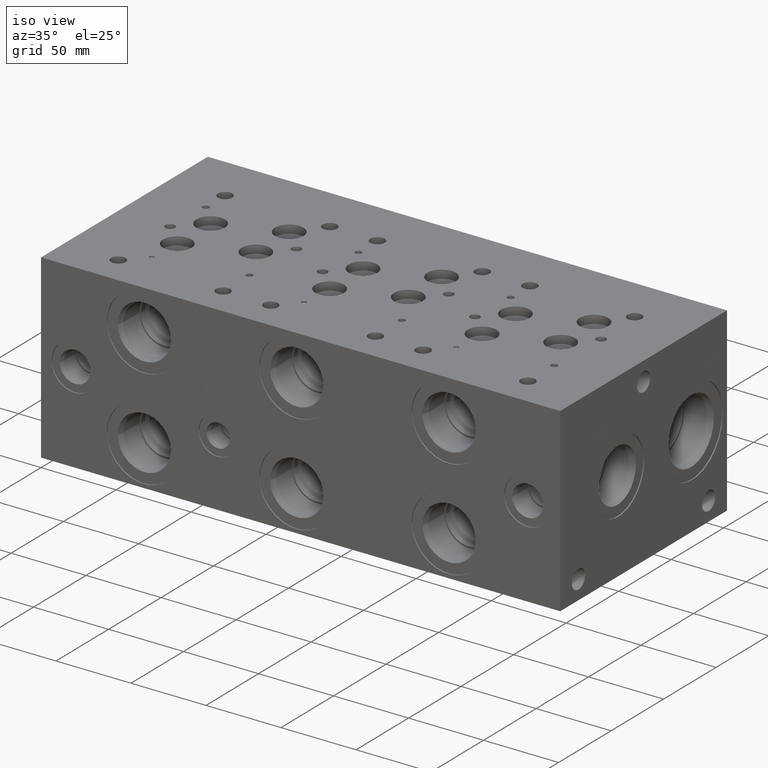
[diagram: clean part render]
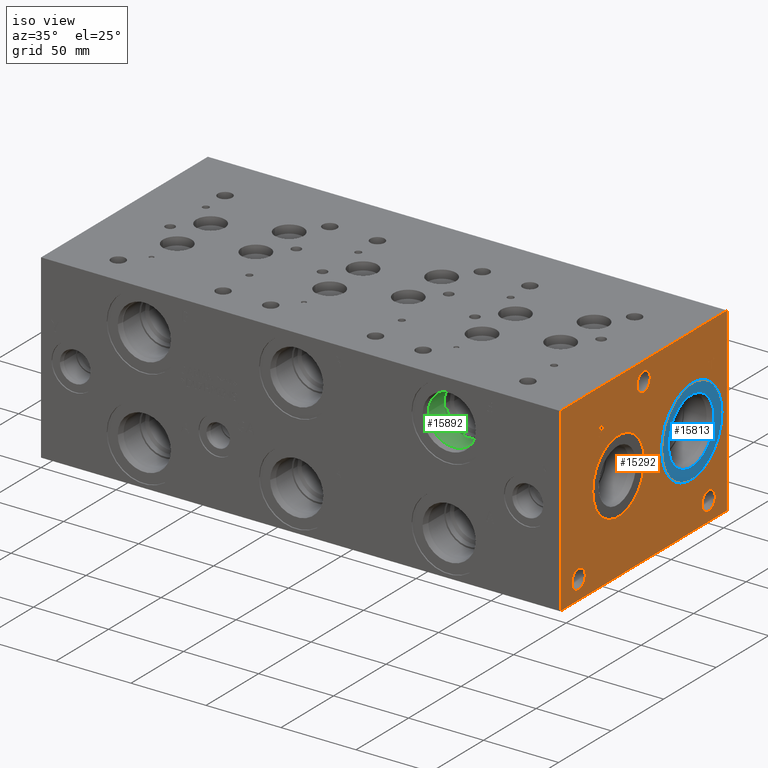
[diagram: same view with three faces highlighted in distinct colors, each labeled with its STEP entity id]
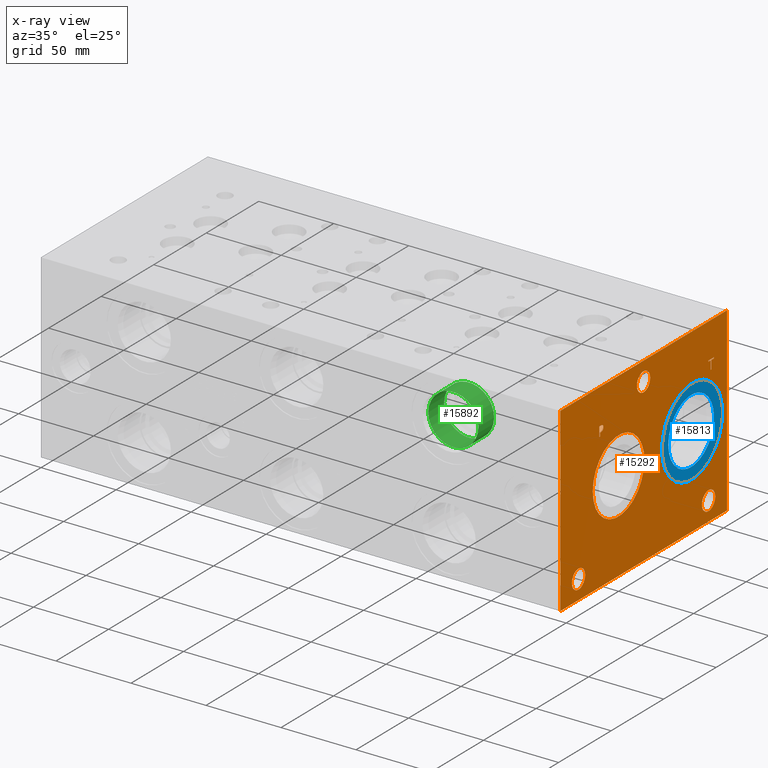
[diagram: x-ray of the same camera — body ghosted, the three highlighted faces saturated]
A machine part, iso view with three faces highlighted in distinct colors.
The next image is the same camera in x-ray (body ghosted, the three faces saturated) — at least one of them is partly hidden behind the body in this view.
Their STEP definitions:

[orange] entity #15292 — the highlighted planar face has unit normal (1, 0, 0).
#263=CIRCLE('',#16143,6.35);
#264=CIRCLE('',#16144,6.35);
#265=CIRCLE('',#16145,6.35);
#266=CIRCLE('',#16146,6.35);
#267=CIRCLE('',#16147,6.35);
#268=CIRCLE('',#16148,6.35);
#269=CIRCLE('',#16149,24.5618);
#270=CIRCLE('',#16150,24.5618);
#271=CIRCLE('',#16151,29.2862);
#272=CIRCLE('',#16152,29.2862);
#775=FACE_BOUND('',#2272,.T.);
#776=FACE_BOUND('',#2273,.T.);
#777=FACE_BOUND('',#2274,.T.);
#778=FACE_BOUND('',#2275,.T.);
#779=FACE_BOUND('',#2276,.T.);
#780=FACE_BOUND('',#2277,.T.);
#781=FACE_BOUND('',#2278,.T.);
#943=B_SPLINE_CURVE_WITH_KNOTS('',2,(#21289,#21290,#21291,#21292),
 .UNSPECIFIED.,.F.,.F.,(3,1,3),(0.,1.,2.),.UNSPECIFIED.);
#945=B_SPLINE_CURVE_WITH_KNOTS('',2,(#21310,#21311,#21312,#21313),
 .UNSPECIFIED.,.F.,.F.,(3,1,3),(0.,1.,2.),.UNSPECIFIED.);
#947=B_SPLINE_CURVE_WITH_KNOTS('',2,(#21359,#21360,#21361,#21362),
 .UNSPECIFIED.,.F.,.F.,(3,1,3),(0.,1.,2.),.UNSPECIFIED.);
#949=B_SPLINE_CURVE_WITH_KNOTS('',2,(#21377,#21378,#21379,#21380),
 .UNSPECIFIED.,.F.,.F.,(3,1,3),(0.,1.,2.),.UNSPECIFIED.);
#1426=FACE_OUTER_BOUND('',#2271,.T.);
#2271=EDGE_LOOP('',(#9966,#9967,#9968,#9969));
#2272=EDGE_LOOP('',(#9970,#9971,#9972,#9973,#9974,#9975,#9976,#9977));
#2273=EDGE_LOOP('',(#9978,#9979));
#2274=EDGE_LOOP('',(#9980,#9981));
#2275=EDGE_LOOP('',(#9982,#9983));
#2276=EDGE_LOOP('',(#9984,#9985));
#2277=EDGE_LOOP('',(#9986,#9987));
#2278=EDGE_LOOP('',(#9988,#9989,#9990,#9991,#9992,#9993,#9994,#9995,#9996));
#3249=LINE('',#21139,#4658);
#3253=LINE('',#21147,#4662);
#3256=LINE('',#21153,#4665);
#3259=LINE('',#21159,#4668);
#3262=LINE('',#21165,#4671);
#3265=LINE('',#21171,#4674);
#3268=LINE('',#21177,#4677);
#3271=LINE('',#21182,#4680);
#3289=LINE('',#21322,#4698);
#3292=LINE('',#21328,#4701);
#3295=LINE('',#21334,#4704);
#3298=LINE('',#21340,#4707);
#3301=LINE('',#21346,#4710);
#3305=LINE('',#21389,#4714);
#3306=LINE('',#21391,#4715);
#3307=LINE('',#21393,#4716);
#3308=LINE('',#21394,#4717);
#4658=VECTOR('',#17328,10.);
#4662=VECTOR('',#17334,10.);
#4665=VECTOR('',#17339,10.);
#4668=VECTOR('',#17344,10.);
#4671=VECTOR('',#17349,10.);
#4674=VECTOR('',#17354,10.);
#4677=VECTOR('',#17359,10.);
#4680=VECTOR('',#17364,10.);
#4698=VECTOR('',#17392,10.);
#4701=VECTOR('',#17397,10.);
#4704=VECTOR('',#17402,10.);
#4707=VECTOR('',#17407,10.);
#4710=VECTOR('',#17412,10.);
#4714=VECTOR('',#17420,10.);
#4715=VECTOR('',#17421,10.);
#4716=VECTOR('',#17422,10.);
#4717=VECTOR('',#17423,10.);
#6067=VERTEX_POINT('',#21137);
#6068=VERTEX_POINT('',#21138);
#6071=VERTEX_POINT('',#21146);
#6073=VERTEX_POINT('',#21152);
#6075=VERTEX_POINT('',#21158);
#6077=VERTEX_POINT('',#21164);
#6079=VERTEX_POINT('',#21170);
#6081=VERTEX_POINT('',#21176);
#6097=VERTEX_POINT('',#21287);
#6098=VERTEX_POINT('',#21288);
#6101=VERTEX_POINT('',#21309);
#6103=VERTEX_POINT('',#21321);
#6105=VERTEX_POINT('',#21327);
#6107=VERTEX_POINT('',#21333);
#6109=VERTEX_POINT('',#21339);
#6111=VERTEX_POINT('',#21345);
#6113=VERTEX_POINT('',#21358);
#6115=VERTEX_POINT('',#21387);
#6116=VERTEX_POINT('',#21388);
#6117=VERTEX_POINT('',#21390);
#6118=VERTEX_POINT('',#21392);
#6119=VERTEX_POINT('',#21395);
#6120=VERTEX_POINT('',#21396);
#6121=VERTEX_POINT('',#21399);
#6122=VERTEX_POINT('',#21400);
#6123=VERTEX_POINT('',#21403);
#6124=VERTEX_POINT('',#21404);
#6125=VERTEX_POINT('',#21407);
#6126=VERTEX_POINT('',#21408);
#6127=VERTEX_POINT('',#21411);
#6128=VERTEX_POINT('',#21412);
#7616=EDGE_CURVE('',#6067,#6068,#3249,.T.);
#7620=EDGE_CURVE('',#6071,#6067,#3253,.T.);
#7623=EDGE_CURVE('',#6073,#6071,#3256,.T.);
#7626=EDGE_CURVE('',#6075,#6073,#3259,.T.);
#7629=EDGE_CURVE('',#6077,#6075,#3262,.T.);
#7632=EDGE_CURVE('',#6079,#6077,#3265,.T.);
#7635=EDGE_CURVE('',#6081,#6079,#3268,.T.);
#7638=EDGE_CURVE('',#6068,#6081,#3271,.T.);
#7661=EDGE_CURVE('',#6097,#6098,#943,.T.);
#7665=EDGE_CURVE('',#6101,#6097,#945,.T.);
#7668=EDGE_CURVE('',#6103,#6101,#3289,.T.);
#7671=EDGE_CURVE('',#6105,#6103,#3292,.T.);
#7674=EDGE_CURVE('',#6107,#6105,#3295,.T.);
#7677=EDGE_CURVE('',#6109,#6107,#3298,.T.);
#7680=EDGE_CURVE('',#6111,#6109,#3301,.T.);
#7683=EDGE_CURVE('',#6113,#6111,#947,.T.);
#7686=EDGE_CURVE('',#6098,#6113,#949,.T.);
#7688=EDGE_CURVE('',#6115,#6116,#3305,.T.);
#7689=EDGE_CURVE('',#6116,#6117,#3306,.T.);
#7690=EDGE_CURVE('',#6118,#6117,#3307,.T.);
#7691=EDGE_CURVE('',#6115,#6118,#3308,.T.);
#7692=EDGE_CURVE('',#6119,#6120,#263,.T.);
#7693=EDGE_CURVE('',#6120,#6119,#264,.T.);
#7694=EDGE_CURVE('',#6121,#6122,#265,.T.);
#7695=EDGE_CURVE('',#6122,#6121,#266,.T.);
#7696=EDGE_CURVE('',#6123,#6124,#267,.T.);
#7697=EDGE_CURVE('',#6124,#6123,#268,.T.);
#7698=EDGE_CURVE('',#6125,#6126,#269,.T.);
#7699=EDGE_CURVE('',#6126,#6125,#270,.T.);
#7700=EDGE_CURVE('',#6127,#6128,#271,.T.);
#7701=EDGE_CURVE('',#6128,#6127,#272,.T.);
#9966=ORIENTED_EDGE('',*,*,#7688,.T.);
#9967=ORIENTED_EDGE('',*,*,#7689,.T.);
#9968=ORIENTED_EDGE('',*,*,#7690,.F.);
#9969=ORIENTED_EDGE('',*,*,#7691,.F.);
#9970=ORIENTED_EDGE('',*,*,#7616,.T.);
#9971=ORIENTED_EDGE('',*,*,#7638,.T.);
#9972=ORIENTED_EDGE('',*,*,#7635,.T.);
#9973=ORIENTED_EDGE('',*,*,#7632,.T.);
#9974=ORIENTED_EDGE('',*,*,#7629,.T.);
#9975=ORIENTED_EDGE('',*,*,#7626,.T.);
#9976=ORIENTED_EDGE('',*,*,#7623,.T.);
#9977=ORIENTED_EDGE('',*,*,#7620,.T.);
#9978=ORIENTED_EDGE('',*,*,#7692,.T.);
#9979=ORIENTED_EDGE('',*,*,#7693,.T.);
#9980=ORIENTED_EDGE('',*,*,#7694,.T.);
#9981=ORIENTED_EDGE('',*,*,#7695,.T.);
#9982=ORIENTED_EDGE('',*,*,#7696,.T.);
#9983=ORIENTED_EDGE('',*,*,#7697,.T.);
#9984=ORIENTED_EDGE('',*,*,#7698,.T.);
#9985=ORIENTED_EDGE('',*,*,#7699,.T.);
#9986=ORIENTED_EDGE('',*,*,#7700,.T.);
#9987=ORIENTED_EDGE('',*,*,#7701,.T.);
#9988=ORIENTED_EDGE('',*,*,#7661,.T.);
#9989=ORIENTED_EDGE('',*,*,#7686,.T.);
#9990=ORIENTED_EDGE('',*,*,#7683,.T.);
#9991=ORIENTED_EDGE('',*,*,#7680,.T.);
#9992=ORIENTED_EDGE('',*,*,#7677,.T.);
#9993=ORIENTED_EDGE('',*,*,#7674,.T.);
#9994=ORIENTED_EDGE('',*,*,#7671,.T.);
#9995=ORIENTED_EDGE('',*,*,#7668,.T.);
#9996=ORIENTED_EDGE('',*,*,#7665,.T.);
#14324=PLANE('',#16142);
#15292=ADVANCED_FACE('',(#1426,#775,#776,#777,#778,#779,#780,#781),#14324,
 .T.);
#16142=AXIS2_PLACEMENT_3D('',#21386,#17418,#17419);
#16143=AXIS2_PLACEMENT_3D('',#21397,#17424,#17425);
#16144=AXIS2_PLACEMENT_3D('',#21398,#17426,#17427);
#16145=AXIS2_PLACEMENT_3D('',#21401,#17428,#17429);
#16146=AXIS2_PLACEMENT_3D('',#21402,#17430,#17431);
#16147=AXIS2_PLACEMENT_3D('',#21405,#17432,#17433);
#16148=AXIS2_PLACEMENT_3D('',#21406,#17434,#17435);
#16149=AXIS2_PLACEMENT_3D('',#21409,#17436,#17437);
#16150=AXIS2_PLACEMENT_3D('',#21410,#17438,#17439);
#16151=AXIS2_PLACEMENT_3D('',#21413,#17440,#17441);
#16152=AXIS2_PLACEMENT_3D('',#21414,#17442,#17443);
#17328=DIRECTION('',(0.,-1.,0.));
#17334=DIRECTION('',(0.,0.,-1.));
#17339=DIRECTION('',(0.,-1.,0.));
#17344=DIRECTION('',(0.,0.,-1.));
#17349=DIRECTION('',(0.,1.,0.));
#17354=DIRECTION('',(0.,0.,1.));
#17359=DIRECTION('',(0.,-1.,0.));
#17364=DIRECTION('',(0.,0.,1.));
#17392=DIRECTION('',(0.,1.,0.));
#17397=DIRECTION('',(0.,0.,1.));
#17402=DIRECTION('',(0.,-1.,0.));
#17407=DIRECTION('',(0.,0.,-1.));
#17412=DIRECTION('',(0.,-1.,0.));
#17418=DIRECTION('center_axis',(1.,0.,0.));
#17419=DIRECTION('ref_axis',(0.,1.,0.));
#17420=DIRECTION('',(0.,1.,0.));
#17421=DIRECTION('',(0.,0.,1.));
#17422=DIRECTION('',(0.,1.,0.));
#17423=DIRECTION('',(0.,0.,1.));
#17424=DIRECTION('center_axis',(-1.,0.,0.));
#17425=DIRECTION('ref_axis',(0.,1.,0.));
#17426=DIRECTION('center_axis',(-1.,0.,0.));
#17427=DIRECTION('ref_axis',(0.,1.,0.));
#17428=DIRECTION('center_axis',(-1.,0.,0.));
#17429=DIRECTION('ref_axis',(0.,1.,0.));
#17430=DIRECTION('center_axis',(-1.,0.,0.));
#17431=DIRECTION('ref_axis',(0.,1.,0.));
#17432=DIRECTION('center_axis',(-1.,0.,0.));
#17433=DIRECTION('ref_axis',(0.,1.,0.));
#17434=DIRECTION('center_axis',(-1.,0.,0.));
#17435=DIRECTION('ref_axis',(0.,1.,0.));
#17436=DIRECTION('center_axis',(-1.,0.,0.));
#17437=DIRECTION('ref_axis',(0.,1.,0.));
#17438=DIRECTION('center_axis',(-1.,0.,0.));
#17439=DIRECTION('ref_axis',(0.,1.,0.));
#17440=DIRECTION('center_axis',(-1.,0.,0.));
#17441=DIRECTION('ref_axis',(0.,1.,0.));
#17442=DIRECTION('center_axis',(-1.,0.,0.));
#17443=DIRECTION('ref_axis',(0.,1.,0.));
#21137=CARTESIAN_POINT('',(346.075,144.040765271453,90.805));
#21138=CARTESIAN_POINT('',(346.075,143.196843079913,90.805));
#21139=CARTESIAN_POINT('',(346.075,72.0203826357265,90.805));
#21146=CARTESIAN_POINT('',(346.075,144.040765271453,96.4037033194816));
#21147=CARTESIAN_POINT('',(346.075,144.040765271453,48.2018516597408));
#21152=CARTESIAN_POINT('',(346.075,146.171154218388,96.4037033194816));
#21153=CARTESIAN_POINT('',(346.075,73.085577109194,96.4037033194816));
#21158=CARTESIAN_POINT('',(346.075,146.171154218388,97.1549999046326));
#21159=CARTESIAN_POINT('',(346.075,146.171154218388,48.5774999523163));
#21164=CARTESIAN_POINT('',(346.075,141.066454132978,97.1549999046326));
#21165=CARTESIAN_POINT('',(346.075,70.5332270664892,97.1549999046326));
#21170=CARTESIAN_POINT('',(346.075,141.066454132978,96.4037033194816));
#21171=CARTESIAN_POINT('',(346.075,141.066454132978,48.2018516597408));
#21176=CARTESIAN_POINT('',(346.075,143.196843079913,96.4037033194816));
#21177=CARTESIAN_POINT('',(346.075,71.5984215399567,96.4037033194816));
#21182=CARTESIAN_POINT('',(346.075,143.196843079913,45.4025));
#21287=CARTESIAN_POINT('',(346.075,40.4257672023594,96.7587681439707));
#21288=CARTESIAN_POINT('',(346.075,41.182209654532,95.240737372604));
#21289=CARTESIAN_POINT('Ctrl Pts',(346.075,40.4257672023594,96.7587681439707));
#21290=CARTESIAN_POINT('Ctrl Pts',(346.075,40.7808320268486,96.5169123939564));
#21291=CARTESIAN_POINT('Ctrl Pts',(346.075,41.182209654532,95.7707616758269));
#21292=CARTESIAN_POINT('Ctrl Pts',(346.075,41.182209654532,95.240737372604));
#21309=CARTESIAN_POINT('',(346.075,38.7636521543883,97.1549999046326));
#21310=CARTESIAN_POINT('Ctrl Pts',(346.075,38.7636521543883,97.1549999046326));
#21311=CARTESIAN_POINT('Ctrl Pts',(346.075,39.3296975267624,97.1549999046326));
#21312=CARTESIAN_POINT('Ctrl Pts',(346.075,40.122161048086,96.9697486918556));
#21313=CARTESIAN_POINT('Ctrl Pts',(346.075,40.4257672023594,96.7587681439707));
#21321=CARTESIAN_POINT('',(346.075,37.1684333776978,97.1549999046326));
#21322=CARTESIAN_POINT('',(346.075,18.5842166888489,97.1549999046326));
#21327=CARTESIAN_POINT('',(346.075,37.1684333776978,90.805));
#21328=CARTESIAN_POINT('',(346.075,37.1684333776978,45.4025));
#21333=CARTESIAN_POINT('',(346.075,38.0123555692373,90.805));
#21334=CARTESIAN_POINT('',(346.075,19.0061777846186,90.805));
#21339=CARTESIAN_POINT('',(346.075,38.0123555692373,93.1720988299279));
#21340=CARTESIAN_POINT('',(346.075,38.0123555692373,46.5860494149639));
#21345=CARTESIAN_POINT('',(346.075,38.7276310852372,93.1720988299279));
#21346=CARTESIAN_POINT('',(346.075,19.3638155426186,93.1720988299279));
#21358=CARTESIAN_POINT('',(346.075,40.6264560162011,93.8307698086904));
#21359=CARTESIAN_POINT('Ctrl Pts',(346.075,40.6264560162011,93.8307698086904));
#21360=CARTESIAN_POINT('Ctrl Pts',(346.075,40.2971205268198,93.5065801863307));
#21361=CARTESIAN_POINT('Ctrl Pts',(346.075,39.4068855320861,93.1720988299279));
#21362=CARTESIAN_POINT('Ctrl Pts',(346.075,38.7276310852372,93.1720988299279));
#21377=CARTESIAN_POINT('Ctrl Pts',(346.075,41.182209654532,95.240737372604));
#21378=CARTESIAN_POINT('Ctrl Pts',(346.075,41.182209654532,94.8290680108774));
#21379=CARTESIAN_POINT('Ctrl Pts',(346.075,40.8888952343018,94.0880631597695));
#21380=CARTESIAN_POINT('Ctrl Pts',(346.075,40.6264560162011,93.8307698086904));
#21386=CARTESIAN_POINT('Origin',(346.075,0.,0.));
#21387=CARTESIAN_POINT('',(346.075,0.,0.));
#21388=CARTESIAN_POINT('',(346.075,158.75,0.));
#21389=CARTESIAN_POINT('',(346.075,0.,0.));
#21390=CARTESIAN_POINT('',(346.075,158.75,120.65));
#21391=CARTESIAN_POINT('',(346.075,158.75,0.));
#21392=CARTESIAN_POINT('',(346.075,0.,120.65));
#21393=CARTESIAN_POINT('',(346.075,0.,120.65));
#21394=CARTESIAN_POINT('',(346.075,0.,0.));
#21395=CARTESIAN_POINT('',(346.075,147.6248,12.7));
#21396=CARTESIAN_POINT('',(346.075,134.9248,12.7));
#21397=CARTESIAN_POINT('Origin',(346.075,141.2748,12.7));
#21398=CARTESIAN_POINT('Origin',(346.075,141.2748,12.7));
#21399=CARTESIAN_POINT('',(346.075,85.725,107.95));
#21400=CARTESIAN_POINT('',(346.075,73.025,107.95));
#21401=CARTESIAN_POINT('Origin',(346.075,79.375,107.95));
#21402=CARTESIAN_POINT('Origin',(346.075,79.375,107.95));
#21403=CARTESIAN_POINT('',(346.075,23.8252,12.7));
#21404=CARTESIAN_POINT('',(346.075,11.1252,12.7));
#21405=CARTESIAN_POINT('Origin',(346.075,17.4752,12.7));
#21406=CARTESIAN_POINT('Origin',(346.075,17.4752,12.7));
#21407=CARTESIAN_POINT('',(346.075,80.137,60.325));
#21408=CARTESIAN_POINT('',(346.075,31.0134,60.325));
#21409=CARTESIAN_POINT('Origin',(346.075,55.5752,60.325));
#21410=CARTESIAN_POINT('Origin',(346.075,55.5752,60.325));
#21411=CARTESIAN_POINT('',(346.075,155.1178,60.325));
#21412=CARTESIAN_POINT('',(346.075,96.5454,60.325));
#21413=CARTESIAN_POINT('Origin',(346.075,125.8316,60.325));
#21414=CARTESIAN_POINT('Origin',(346.075,125.8316,60.325));

[blue] entity #15813 — the highlighted planar face has unit normal (1, 0, 0).
#313=CIRCLE('',#16567,29.2862);
#314=CIRCLE('',#16568,29.2862);
#315=CIRCLE('',#16569,21.7551);
#847=FACE_BOUND('',#2865,.T.);
#1947=FACE_OUTER_BOUND('',#2864,.T.);
#2864=EDGE_LOOP('',(#12831,#12832));
#2865=EDGE_LOOP('',(#12833));
#7098=VERTEX_POINT('',#26255);
#7099=VERTEX_POINT('',#26256);
#7100=VERTEX_POINT('',#26259);
#9141=EDGE_CURVE('',#7098,#7099,#313,.T.);
#9142=EDGE_CURVE('',#7099,#7098,#314,.T.);
#9143=EDGE_CURVE('',#7100,#7100,#315,.T.);
#12831=ORIENTED_EDGE('',*,*,#9141,.T.);
#12832=ORIENTED_EDGE('',*,*,#9142,.T.);
#12833=ORIENTED_EDGE('',*,*,#9143,.F.);
#14691=PLANE('',#16566);
#15813=ADVANCED_FACE('',(#1947,#847),#14691,.T.);
#16566=AXIS2_PLACEMENT_3D('',#26254,#19375,#19376);
#16567=AXIS2_PLACEMENT_3D('',#26257,#19377,#19378);
#16568=AXIS2_PLACEMENT_3D('',#26258,#19379,#19380);
#16569=AXIS2_PLACEMENT_3D('',#26260,#19381,#19382);
#19375=DIRECTION('center_axis',(1.,0.,0.));
#19376=DIRECTION('ref_axis',(0.,1.,0.));
#19377=DIRECTION('center_axis',(1.,0.,0.));
#19378=DIRECTION('ref_axis',(0.,1.,0.));
#19379=DIRECTION('center_axis',(1.,0.,0.));
#19380=DIRECTION('ref_axis',(0.,1.,0.));
#19381=DIRECTION('center_axis',(1.,0.,0.));
#19382=DIRECTION('ref_axis',(0.,1.,0.));
#26254=CARTESIAN_POINT('Origin',(345.2876,125.8316,60.325));
#26255=CARTESIAN_POINT('',(345.2876,155.1178,60.325));
#26256=CARTESIAN_POINT('',(345.2876,96.5454,60.325));
#26257=CARTESIAN_POINT('Origin',(345.2876,125.8316,60.325));
#26258=CARTESIAN_POINT('Origin',(345.2876,125.8316,60.325));
#26259=CARTESIAN_POINT('',(345.2876,104.0765,60.325));
#26260=CARTESIAN_POINT('Origin',(345.2876,125.8316,60.325));

[green] entity #15892 — the highlighted cylindrical surface (bore or boss wall) has radius 16.6751 mm, axis along (0, -1, 0).
#54=CYLINDRICAL_SURFACE('',#16764,16.6751);
#429=CIRCLE('',#16761,16.6751);
#430=CIRCLE('',#16762,16.6751);
#432=CIRCLE('',#16765,16.6751);
#2026=FACE_OUTER_BOUND('',#2958,.T.);
#2958=EDGE_LOOP('',(#13205,#13206,#13207,#13208,#13209));
#4478=LINE('',#26647,#5887);
#5887=VECTOR('',#19839,16.6751);
#7223=VERTEX_POINT('',#26638);
#7224=VERTEX_POINT('',#26639);
#7226=VERTEX_POINT('',#26645);
#9321=EDGE_CURVE('',#7223,#7224,#429,.T.);
#9322=EDGE_CURVE('',#7224,#7223,#430,.T.);
#9324=EDGE_CURVE('',#7226,#7226,#432,.T.);
#9325=EDGE_CURVE('',#7226,#7224,#4478,.T.);
#13205=ORIENTED_EDGE('',*,*,#9324,.F.);
#13206=ORIENTED_EDGE('',*,*,#9325,.T.);
#13207=ORIENTED_EDGE('',*,*,#9321,.F.);
#13208=ORIENTED_EDGE('',*,*,#9322,.F.);
#13209=ORIENTED_EDGE('',*,*,#9325,.F.);
#15892=ADVANCED_FACE('',(#2026),#54,.F.);
#16761=AXIS2_PLACEMENT_3D('',#26640,#19829,#19830);
#16762=AXIS2_PLACEMENT_3D('',#26641,#19831,#19832);
#16764=AXIS2_PLACEMENT_3D('',#26644,#19835,#19836);
#16765=AXIS2_PLACEMENT_3D('',#26646,#19837,#19838);
#19829=DIRECTION('center_axis',(0.,-1.,0.));
#19830=DIRECTION('ref_axis',(1.,0.,0.));
#19831=DIRECTION('center_axis',(0.,-1.,0.));
#19832=DIRECTION('ref_axis',(1.,0.,0.));
#19835=DIRECTION('center_axis',(0.,-1.,0.));
#19836=DIRECTION('ref_axis',(1.,0.,0.));
#19837=DIRECTION('center_axis',(0.,1.,0.));
#19838=DIRECTION('ref_axis',(1.,0.,0.));
#19839=DIRECTION('',(0.,1.,0.));
#26638=CARTESIAN_POINT('',(288.1503,19.8374,93.6498));
#26639=CARTESIAN_POINT('',(254.8001,19.8374,93.6498));
#26640=CARTESIAN_POINT('Origin',(271.4752,19.8374,93.6498));
#26641=CARTESIAN_POINT('Origin',(271.4752,19.8374,93.6498));
#26644=CARTESIAN_POINT('Origin',(271.4752,9.9187,93.6498));
#26645=CARTESIAN_POINT('',(254.8001,4.8236788467706,93.6498));
#26646=CARTESIAN_POINT('Origin',(271.4752,4.8236788467706,93.6498));
#26647=CARTESIAN_POINT('',(254.8001,9.9187,93.6498));